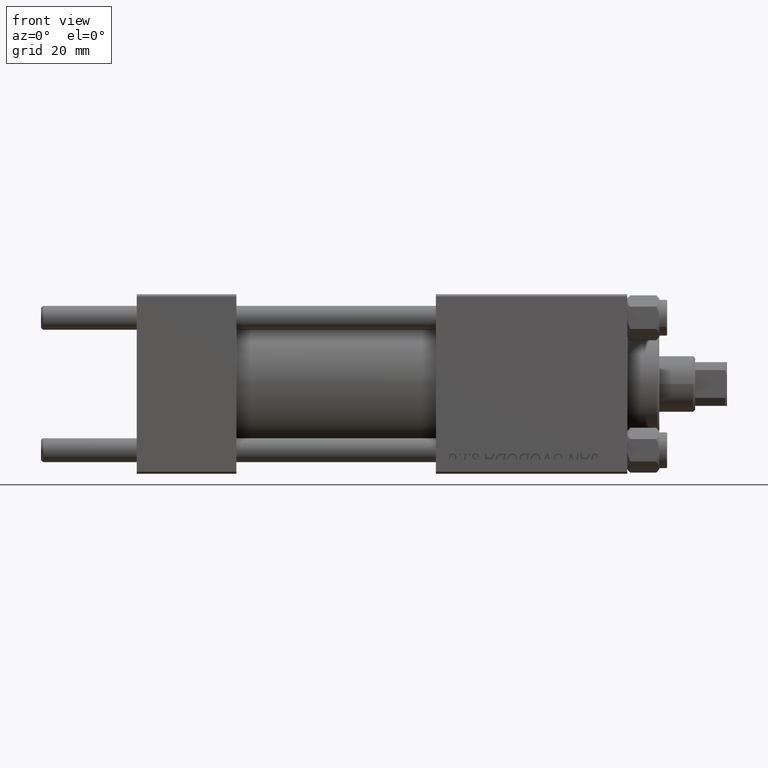
[diagram: clean part render]
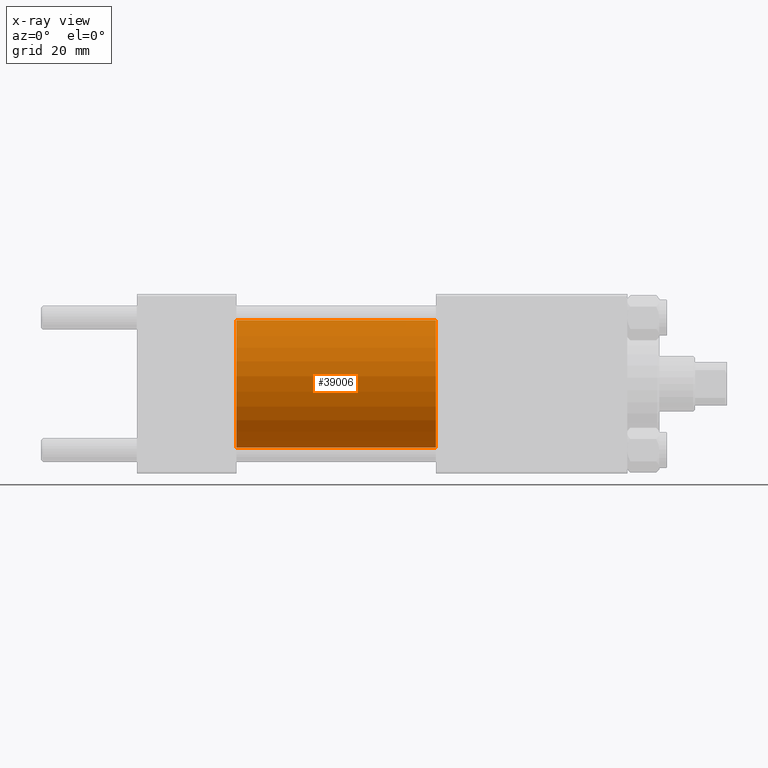
[diagram: x-ray — body ghosted, one internal face saturated and labeled with its STEP entity id]
A machine part, front view, then the same camera in x-ray: the body is ghosted and one INTERNAL B-rep face — a face not visible from any outside direction — is saturated and labeled: STEP entity #39006.
In plain terms, the highlighted cylindrical surface (partial cylindrical patch) has radius 16 mm, axis along (-1, -0, -0).
Its self-contained STEP definition (entity closure, byte-faithful):
#1714 = VERTEX_POINT ( 'NONE', #48363 ) ;
#2495 = EDGE_CURVE ( 'NONE', #1714, #32871, #42679, .T. ) ;
#4803 = DIRECTION ( 'NONE',  ( 0.000000000000000000, 0.000000000000000000, 1.000000000000000000 ) ) ;
#7064 = VECTOR ( 'NONE', #45842, 1000.000000000000000 ) ;
#10486 = AXIS2_PLACEMENT_3D ( 'NONE', #40330, #31735, #4803 ) ;
#10737 = CARTESIAN_POINT ( 'NONE',  ( 75.00000000000001421, 1.959434878635765131E-15, -16.00000000000000000 ) ) ;
#11202 = DIRECTION ( 'NONE',  ( -1.000000000000000000, -0.000000000000000000, -0.000000000000000000 ) ) ;
#11794 = VERTEX_POINT ( 'NONE', #45736 ) ;
#12899 = CIRCLE ( 'NONE', #44278, 16.00000000000000000 ) ;
#13648 = CARTESIAN_POINT ( 'NONE',  ( 25.00000000000000000, 0.000000000000000000, 0.000000000000000000 ) ) ;
#18635 = LINE ( 'NONE', #45335, #7064 ) ;
#20799 = CIRCLE ( 'NONE', #34458, 16.00000000000000000 ) ;
#22652 = ORIENTED_EDGE ( 'NONE', *, *, #30865, .F. ) ;
#23075 = CARTESIAN_POINT ( 'NONE',  ( 25.00000000000000000, 0.000000000000000000, 16.00000000000000000 ) ) ;
#23366 = CARTESIAN_POINT ( 'NONE',  ( 75.00000000000001421, 0.000000000000000000, 0.000000000000000000 ) ) ;
#25201 = FACE_OUTER_BOUND ( 'NONE', #31148, .T. ) ;
#25636 = VERTEX_POINT ( 'NONE', #10737 ) ;
#29615 = VECTOR ( 'NONE', #11202, 1000.000000000000000 ) ;
#30032 = EDGE_CURVE ( 'NONE', #25636, #11794, #18635, .T. ) ;
#30865 = EDGE_CURVE ( 'NONE', #32871, #11794, #20799, .T. ) ;
#31116 = ORIENTED_EDGE ( 'NONE', *, *, #2495, .F. ) ;
#31148 = EDGE_LOOP ( 'NONE', ( #38778, #48715, #22652, #31116 ) ) ;
#31398 = DIRECTION ( 'NONE',  ( 0.000000000000000000, 0.000000000000000000, -1.000000000000000000 ) ) ;
#31735 = DIRECTION ( 'NONE',  ( -1.000000000000000000, -0.000000000000000000, -0.000000000000000000 ) ) ;
#32871 = VERTEX_POINT ( 'NONE', #23075 ) ;
#34458 = AXIS2_PLACEMENT_3D ( 'NONE', #13648, #44396, #40870 ) ;
#38733 = DIRECTION ( 'NONE',  ( 1.000000000000000000, 0.000000000000000000, 0.000000000000000000 ) ) ;
#38778 = ORIENTED_EDGE ( 'NONE', *, *, #40396, .T. ) ;
#39006 = ADVANCED_FACE ( 'NONE', ( #25201 ), #44099, .F. ) ;
#40330 = CARTESIAN_POINT ( 'NONE',  ( 75.00000000000001421, 0.000000000000000000, 0.000000000000000000 ) ) ;
#40396 = EDGE_CURVE ( 'NONE', #1714, #25636, #12899, .T. ) ;
#40870 = DIRECTION ( 'NONE',  ( 0.000000000000000000, 0.000000000000000000, -1.000000000000000000 ) ) ;
#42679 = LINE ( 'NONE', #49252, #29615 ) ;
#44099 = CYLINDRICAL_SURFACE ( 'NONE', #10486, 16.00000000000000000 ) ;
#44278 = AXIS2_PLACEMENT_3D ( 'NONE', #23366, #38733, #31398 ) ;
#44396 = DIRECTION ( 'NONE',  ( 1.000000000000000000, 0.000000000000000000, 0.000000000000000000 ) ) ;
#45335 = CARTESIAN_POINT ( 'NONE',  ( 75.00000000000001421, 1.959434878635765131E-15, -16.00000000000000000 ) ) ;
#45736 = CARTESIAN_POINT ( 'NONE',  ( 25.00000000000000000, 1.959434878635765131E-15, -16.00000000000000000 ) ) ;
#45842 = DIRECTION ( 'NONE',  ( -1.000000000000000000, -0.000000000000000000, -0.000000000000000000 ) ) ;
#48363 = CARTESIAN_POINT ( 'NONE',  ( 75.00000000000001421, 0.000000000000000000, 16.00000000000000000 ) ) ;
#48715 = ORIENTED_EDGE ( 'NONE', *, *, #30032, .T. ) ;
#49252 = CARTESIAN_POINT ( 'NONE',  ( 75.00000000000001421, 0.000000000000000000, 16.00000000000000000 ) ) ;